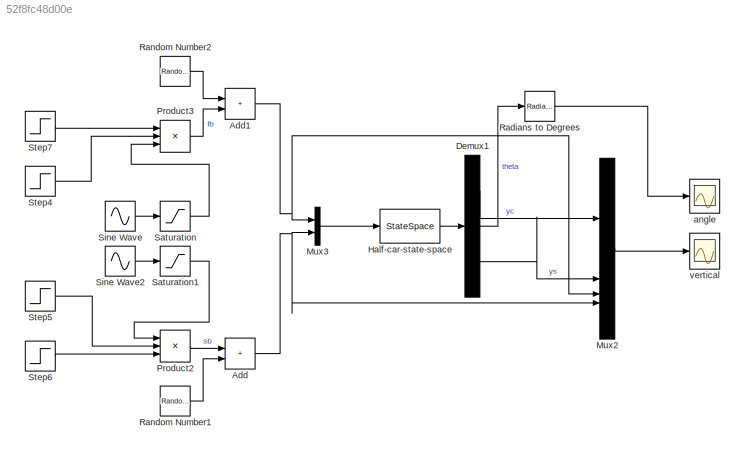
MODEL slx_52f8fc48d00e
KIND model
CONFIG AbsTol = auto
CONFIG EnableMultiTasking = off
CONFIG FixedStep = 0.001
CONFIG MaxStep = auto
CONFIG MinStep = auto
CONFIG RelTol = 1e-3
CONFIG SampleTimeConstraint = Unconstrained
CONFIG SolverName = FixedStepAuto
CONFIG StartTime = 0.0
CONFIG StopTime = 15
BLOCK [Sum] Add
  IconShape = rectangular
BLOCK [Sum] Add1
  IconShape = rectangular
BLOCK [Demux] Demux1
  Outputs = 3
BLOCK [StateSpace] Half-car-state-space
  A = A
  B = B
  C = C
  D = D
  InitialCondition = 0
BLOCK [Mux] Mux2
  DisplayOption = bar
BLOCK [Mux] Mux3
  DisplayOption = bar
  Inputs = 2
BLOCK [Product] Product2
  Inputs = 3
BLOCK [Product] Product3
  Inputs = 3
BLOCK [Reference] Radians to Degrees  REF=simulink_extras/Transformations/Radians
to Degrees
  SourceBlock = simulink_extras/Transformations/Radians\nto Degrees
  SourceType = RadiansToDegrees
BLOCK [RandomNumber] Random Number1
  SampleTime = 0
  Variance = 0.000001
BLOCK [RandomNumber] Random Number2
  SampleTime = 0
  Variance = 0.000001
BLOCK [Saturate] Saturation
  LowerLimit = 0
BLOCK [Saturate] Saturation1
  LowerLimit = 0
BLOCK [Sin] Sine Wave
  Amplitude = 0.1
  Frequency = 3.14159265
  SampleTime = 0
BLOCK [Sin] Sine Wave2
  Amplitude = 0.1
  Frequency = 3.14159265
  Phase = 2*pi
  SampleTime = 0
BLOCK [Step] Step4
  After = 0
  Before = 1
  SampleTime = 0
  Time = 3.5
BLOCK [Step] Step5
  After = 0
  Before = 1
  SampleTime = 0
  Time = 5.5
BLOCK [Step] Step6
  SampleTime = 0
  Time = 3.5
BLOCK [Step] Step7
  SampleTime = 0
  Time = 1.5
BLOCK [Scope] angle
  Floating = off
  NumInputPorts = 1
  ScopeSpecificationString = Simulink.scopes.TimeScopeBlockCfg('CurrentConfiguration', extmgr.ConfigurationSet(extmgr.Configuration('Core','General UI',true),extmgr.Configuration('Core','Source UI',true),extmgr.Configuration('Sources','WiredSimulink',true,'DataLoggingVariableName','ScopeData1'),extmgr.Configuration('Visuals','Time Domain',true,'SerializedDisplays',{struct('MinYLimReal','-0.47076','MaxYLimReal','0.45683','YLab...<+1801ch>
BLOCK [Scope] vertical
  Floating = off
  NumInputPorts = 1
  ScopeSpecificationString = Simulink.scopes.TimeScopeBlockCfg('CurrentConfiguration', extmgr.ConfigurationSet(extmgr.Configuration('Core','General UI',true),extmgr.Configuration('Core','Source UI',true),extmgr.Configuration('Sources','WiredSimulink',true,'DataLoggingVariableName','ScopeData1'),extmgr.Configuration('Visuals','Time Domain',true,'SerializedDisplays',{struct('MinYLimReal','-0.05693','MaxYLimReal','0.12058','YLab...<+1766ch>
NET Add1:1 -> Mux2:3, Mux3:1
NET Add:1 -> Mux2:4, Mux3:2
LINE Demux1:1 -> Mux2:1
LINE Demux1:2 -> Radians to Degrees:1
LINE Demux1:3 -> Mux2:2
LINE Half-car-state-space:1 -> Demux1:1
LINE Mux2:1 -> vertical:1
LINE Mux3:1 -> Half-car-state-space:1
LINE Product2:1 -> Add:1
LINE Product3:1 -> Add1:2
LINE Radians to Degrees:1 -> angle:1
LINE Random Number1:1 -> Add:2
LINE Random Number2:1 -> Add1:1
LINE Saturation1:1 -> Product2:1
LINE Saturation:1 -> Product3:3
LINE Sine Wave2:1 -> Saturation1:1
LINE Sine Wave:1 -> Saturation:1
LINE Step4:1 -> Product3:2
LINE Step5:1 -> Product2:2
LINE Step6:1 -> Product2:3
LINE Step7:1 -> Product3:1
note: NET lines group one-source signal fan-out (src -> all destinations, sorted); 1:1 wires keep LINE
